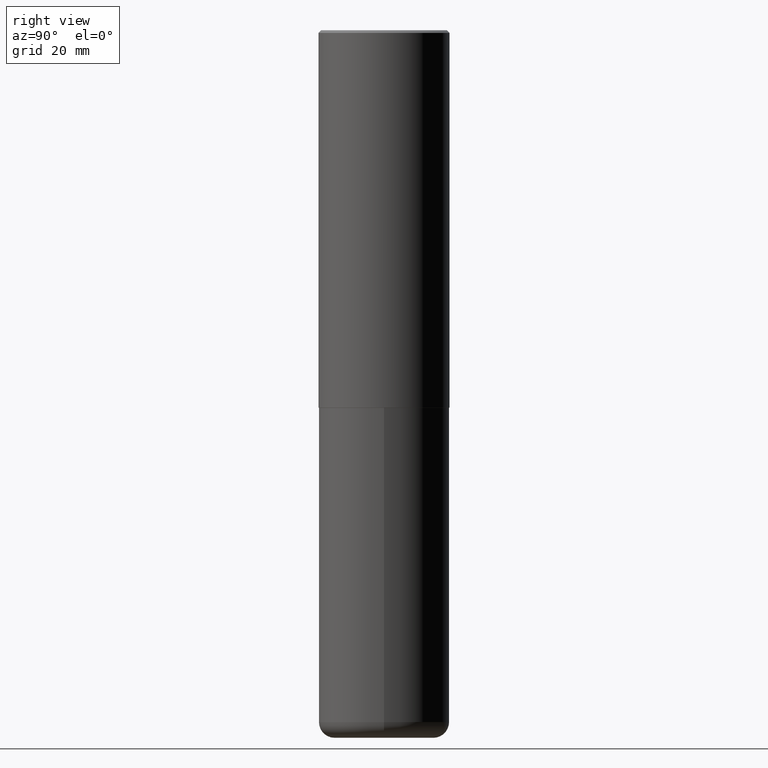
[diagram: clean part render]
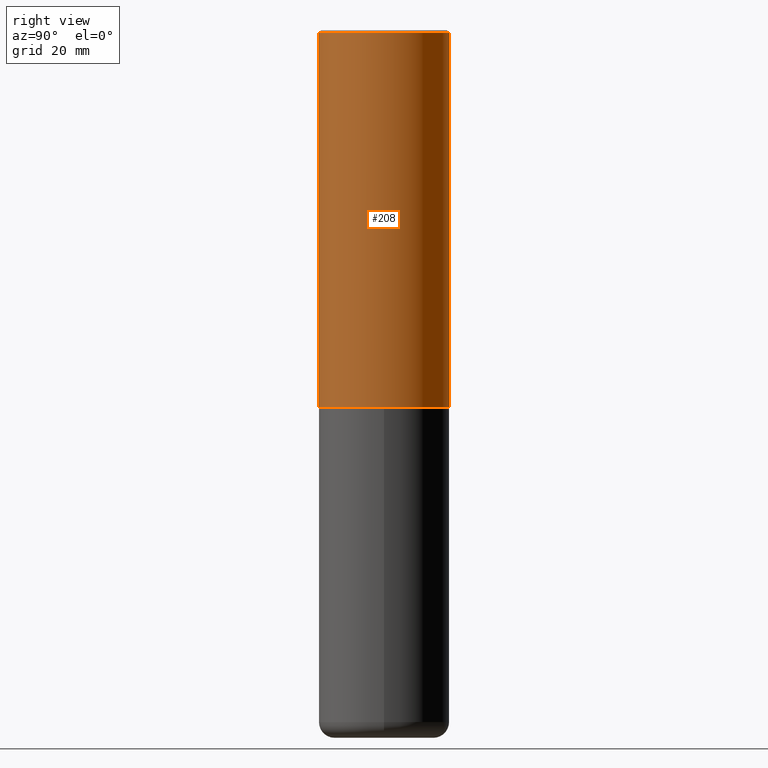
[diagram: same view with one face highlighted and labeled with its STEP entity id]
A machine part, right view. The second image highlights one B-rep face of the part: STEP entity #208.
In plain terms, the highlighted cylindrical surface (partial cylindrical patch) has radius 12.5006 mm, axis along (-0, 0, 1).
Its self-contained STEP definition (entity closure, byte-faithful):
#7 = ORIENTED_EDGE ( 'NONE', *, *, #92, .F. ) ;
#10 = CARTESIAN_POINT ( 'NONE',  ( 3.436665081823296565E-15, 0.4921499999999999764, -0.02000000000000182535 ) ) ;
#24 = AXIS2_PLACEMENT_3D ( 'NONE', #180, #280, #405 ) ;
#29 = DIRECTION ( 'NONE',  ( -6.982962677686265922E-15, -1.000000000000000000, 3.330506545156063891E-15 ) ) ;
#36 = CARTESIAN_POINT ( 'NONE',  ( -3.436665081823228329E-15, -0.4921500000000101904, -2.833699999999998997 ) ) ;
#39 = ORIENTED_EDGE ( 'NONE', *, *, #348, .T. ) ;
#45 = AXIS2_PLACEMENT_3D ( 'NONE', #182, #378, #253 ) ;
#69 = VERTEX_POINT ( 'NONE', #10 ) ;
#74 = ORIENTED_EDGE ( 'NONE', *, *, #154, .T. ) ;
#86 = EDGE_CURVE ( 'NONE', #390, #373, #145, .T. ) ;
#90 = DIRECTION ( 'NONE',  ( -2.445229172240879899E-29, 3.491824508290438613E-15, 1.000000000000000000 ) ) ;
#92 = EDGE_CURVE ( 'NONE', #373, #69, #187, .T. ) ;
#126 = ORIENTED_EDGE ( 'NONE', *, *, #86, .F. ) ;
#145 = LINE ( 'NONE', #368, #155 ) ;
#151 = CARTESIAN_POINT ( 'NONE',  ( 3.496936074043333686E-15, 0.4921500000000001984, -1.718501431755139742E-15 ) ) ;
#154 = EDGE_CURVE ( 'NONE', #299, #69, #409, .T. ) ;
#155 = VECTOR ( 'NONE', #217, 39.37007874015748143 ) ;
#180 = CARTESIAN_POINT ( 'NONE',  ( 4.890458344481786073E-31, -6.983649016580912824E-17, -0.02000000000000010797 ) ) ;
#182 = CARTESIAN_POINT ( 'NONE',  ( 0.000000000000000000, 0.000000000000000000, 0.000000000000000000 ) ) ;
#187 = CIRCLE ( 'NONE', #24, 0.4921500000000000319 ) ;
#208 = ADVANCED_FACE ( 'NONE', ( #288 ), #219, .T. ) ;
#217 = DIRECTION ( 'NONE',  ( -2.445229172240879899E-29, 3.491824508290438613E-15, 1.000000000000000000 ) ) ;
#219 = CYLINDRICAL_SURFACE ( 'NONE', #45, 0.4921500000000001984 ) ;
#253 = DIRECTION ( 'NONE',  ( -6.982962677686266711E-15, -1.000000000000000000, 3.491824508290437824E-15 ) ) ;
#258 = CIRCLE ( 'NONE', #278, 0.4921500000000003094 ) ;
#265 = VECTOR ( 'NONE', #90, 39.37007874015748143 ) ;
#278 = AXIS2_PLACEMENT_3D ( 'NONE', #330, #412, #29 ) ;
#280 = DIRECTION ( 'NONE',  ( -2.445229172240879899E-29, 3.491824508290438219E-15, 1.000000000000000000 ) ) ;
#288 = FACE_OUTER_BOUND ( 'NONE', #318, .T. ) ;
#295 = CARTESIAN_POINT ( 'NONE',  ( -3.376394089603258656E-15, -0.4921500000000000874, -0.01999999999999838712 ) ) ;
#299 = VERTEX_POINT ( 'NONE', #349 ) ;
#318 = EDGE_LOOP ( 'NONE', ( #39, #74, #7, #126 ) ) ;
#330 = CARTESIAN_POINT ( 'NONE',  ( 6.929045905378983914E-29, -9.894783109142616722E-15, -2.833700000000000330 ) ) ;
#348 = EDGE_CURVE ( 'NONE', #390, #299, #258, .T. ) ;
#349 = CARTESIAN_POINT ( 'NONE',  ( 3.496936074043369579E-15, 0.4921499999999904840, -2.833700000000002106 ) ) ;
#368 = CARTESIAN_POINT ( 'NONE',  ( -3.436665081823297354E-15, -0.4921500000000001984, 1.718501431755139742E-15 ) ) ;
#373 = VERTEX_POINT ( 'NONE', #295 ) ;
#378 = DIRECTION ( 'NONE',  ( -2.445229172240879899E-29, 3.491824508290438219E-15, 1.000000000000000000 ) ) ;
#390 = VERTEX_POINT ( 'NONE', #36 ) ;
#405 = DIRECTION ( 'NONE',  ( -6.982962677686265922E-15, -1.000000000000000000, 3.495297233588267070E-15 ) ) ;
#409 = LINE ( 'NONE', #151, #265 ) ;
#412 = DIRECTION ( 'NONE',  ( -2.445229172240879899E-29, 3.491824508290438219E-15, 1.000000000000000000 ) ) ;